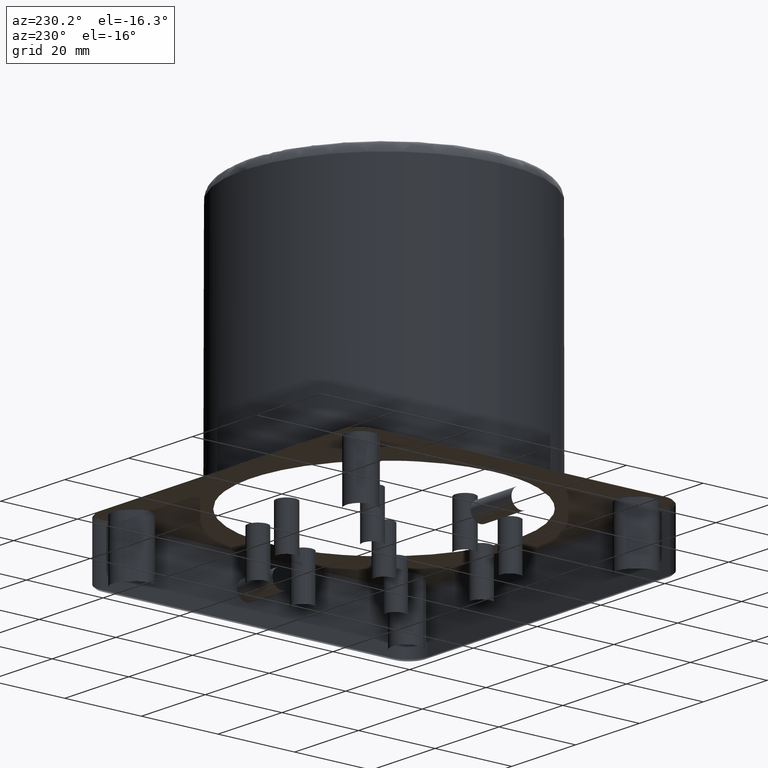
[diagram: clean part render]
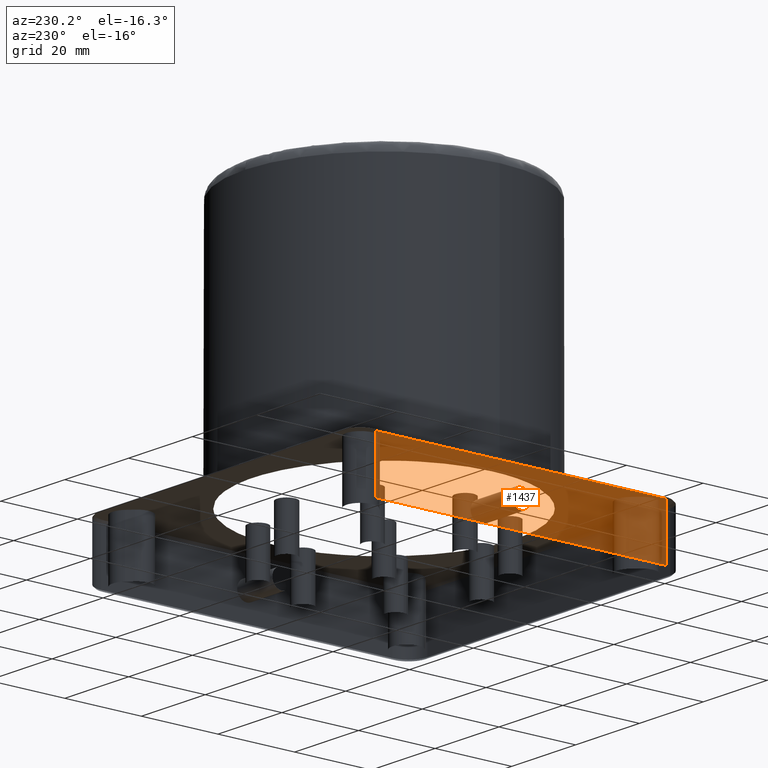
[diagram: same view with one face highlighted and labeled with its STEP entity id]
A machine part, auxiliary view. The second image highlights one B-rep face of the part: STEP entity #1437.
In plain terms, the highlighted planar face has unit normal (1, -0, 0).
Its self-contained STEP definition (entity closure, byte-faithful):
#112 = CARTESIAN_POINT ( 'NONE',  ( -43.00000000000000000, 37.99999999999999289, 14.49999999999999822 ) ) ;
#154 = ORIENTED_EDGE ( 'NONE', *, *, #1834, .T. ) ;
#200 = EDGE_CURVE ( 'NONE', #2313, #3084, #1335, .T. ) ;
#254 = VECTOR ( 'NONE', #2343, 1000.000000000000000 ) ;
#477 = ORIENTED_EDGE ( 'NONE', *, *, #2761, .T. ) ;
#574 = CARTESIAN_POINT ( 'NONE',  ( -43.00000000000000000, -43.00000000000000000, 0.5000000000000004441 ) ) ;
#586 = CARTESIAN_POINT ( 'NONE',  ( -43.00000000000000000, 37.99999999999998579, 15.00000000000000000 ) ) ;
#603 = VERTEX_POINT ( 'NONE', #112 ) ;
#613 = VERTEX_POINT ( 'NONE', #898 ) ;
#622 = FACE_OUTER_BOUND ( 'NONE', #1325, .T. ) ;
#669 = DIRECTION ( 'NONE',  ( 0.000000000000000000, 0.000000000000000000, -1.000000000000000000 ) ) ;
#679 = EDGE_CURVE ( 'NONE', #603, #613, #2851, .T. ) ;
#732 = DIRECTION ( 'NONE',  ( 1.000000000000000000, -0.000000000000000000, 0.000000000000000000 ) ) ;
#741 = EDGE_LOOP ( 'NONE', ( #3145 ) ) ;
#807 = AXIS2_PLACEMENT_3D ( 'NONE', #3211, #1051, #1882 ) ;
#845 = CARTESIAN_POINT ( 'NONE',  ( -43.00000000000000000, 7.480790260892864585E-33, 10.05269999999999264 ) ) ;
#898 = CARTESIAN_POINT ( 'NONE',  ( -42.99999999998737366, -38.00000000000000000, 14.50000000001375611 ) ) ;
#1051 = DIRECTION ( 'NONE',  ( -1.000000000000000000, -0.000000000000000000, -0.000000000000000000 ) ) ;
#1077 = CARTESIAN_POINT ( 'NONE',  ( -42.99999999999614175, 38.00000000000001421, 0.4999999999970444753 ) ) ;
#1156 = CARTESIAN_POINT ( 'NONE',  ( -42.99999999998350830, -38.00000000000000711, 0.4999999999798776518 ) ) ;
#1238 = LINE ( 'NONE', #2301, #1849 ) ;
#1325 = EDGE_LOOP ( 'NONE', ( #2989, #154, #3329, #477 ) ) ;
#1335 = LINE ( 'NONE', #574, #254 ) ;
#1402 = PLANE ( 'NONE',  #3094 ) ;
#1437 = ADVANCED_FACE ( 'NONE', ( #622, #2722 ), #1402, .T. ) ;
#1470 = VECTOR ( 'NONE', #2167, 1000.000000000000000 ) ;
#1496 = CARTESIAN_POINT ( 'NONE',  ( -43.00000000000000000, -43.00000000000000000, 14.49999999999999822 ) ) ;
#1834 = EDGE_CURVE ( 'NONE', #613, #3084, #1238, .T. ) ;
#1849 = VECTOR ( 'NONE', #3105, 1000.000000000000000 ) ;
#1882 = DIRECTION ( 'NONE',  ( 0.000000000000000000, 0.000000000000000000, 1.000000000000000000 ) ) ;
#1897 = EDGE_CURVE ( 'NONE', #2707, #2707, #2354, .T. ) ;
#2007 = VECTOR ( 'NONE', #2558, 1000.000000000000000 ) ;
#2167 = DIRECTION ( 'NONE',  ( -0.000000000000000000, -0.000000000000000000, 1.000000000000000000 ) ) ;
#2234 = CARTESIAN_POINT ( 'NONE',  ( -43.00000000000000000, -43.00000000000000000, 15.00000000000000000 ) ) ;
#2301 = CARTESIAN_POINT ( 'NONE',  ( -42.99999999999999289, -38.00000000000000000, 15.00000000000000000 ) ) ;
#2313 = VERTEX_POINT ( 'NONE', #1077 ) ;
#2343 = DIRECTION ( 'NONE',  ( 0.000000000000000000, -1.000000000000000000, -0.000000000000000000 ) ) ;
#2354 = CIRCLE ( 'NONE', #807, 2.552699999999997971 ) ;
#2558 = DIRECTION ( 'NONE',  ( -0.000000000000000000, -1.000000000000000000, -0.000000000000000000 ) ) ;
#2707 = VERTEX_POINT ( 'NONE', #845 ) ;
#2722 = FACE_BOUND ( 'NONE', #741, .T. ) ;
#2761 = EDGE_CURVE ( 'NONE', #2313, #603, #2878, .T. ) ;
#2851 = LINE ( 'NONE', #1496, #2007 ) ;
#2878 = LINE ( 'NONE', #586, #1470 ) ;
#2989 = ORIENTED_EDGE ( 'NONE', *, *, #679, .T. ) ;
#3084 = VERTEX_POINT ( 'NONE', #1156 ) ;
#3094 = AXIS2_PLACEMENT_3D ( 'NONE', #2234, #732, #669 ) ;
#3105 = DIRECTION ( 'NONE',  ( 0.000000000000000000, 0.000000000000000000, -1.000000000000000000 ) ) ;
#3145 = ORIENTED_EDGE ( 'NONE', *, *, #1897, .T. ) ;
#3211 = CARTESIAN_POINT ( 'NONE',  ( -43.00000000000000000, 7.480790260892864585E-33, 7.499999999999994671 ) ) ;
#3329 = ORIENTED_EDGE ( 'NONE', *, *, #200, .F. ) ;